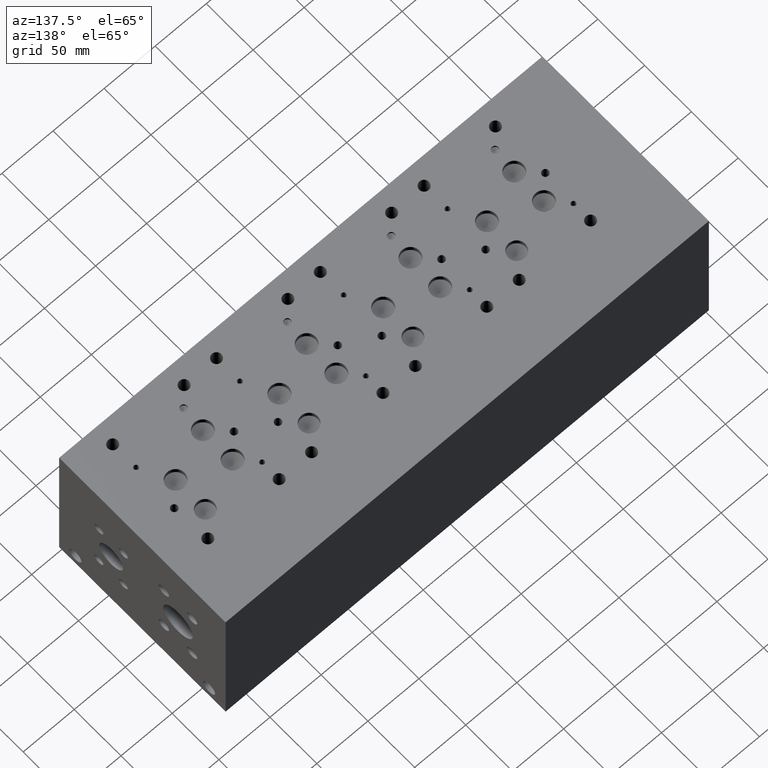
[diagram: clean part render]
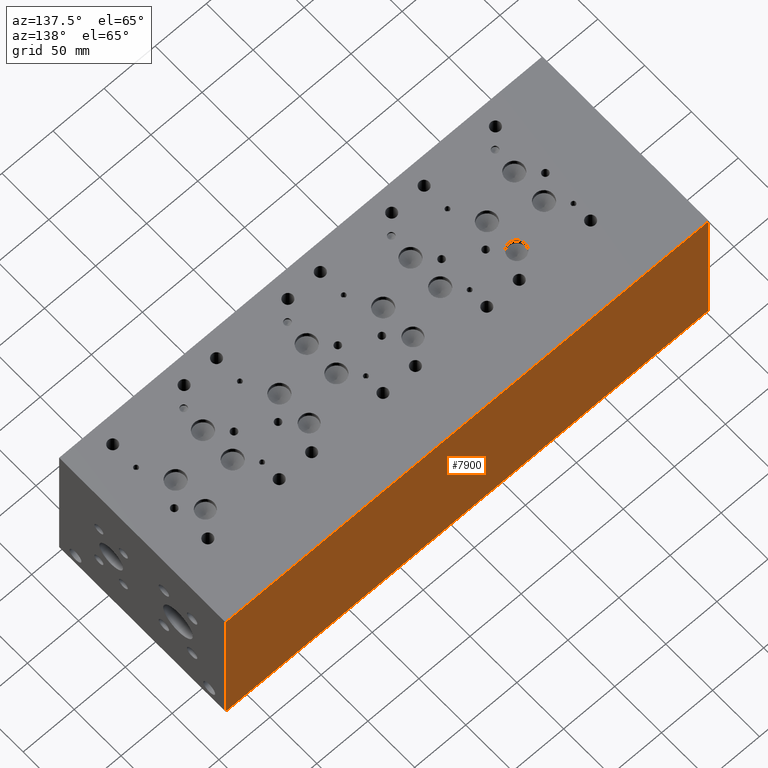
[diagram: same view with one face highlighted and labeled with its STEP entity id]
A machine part, auxiliary view. The second image highlights one B-rep face of the part: STEP entity #7900.
In plain terms, the highlighted planar face has unit normal (0, 1, 0).
Its self-contained STEP definition (entity closure, byte-faithful):
#7801=CARTESIAN_POINT('',(0.0,177.80000000000001,152.40000000000003));
#7802=VERTEX_POINT('',#7801);
#7809=CARTESIAN_POINT('',(0.0,177.80000000000001,0.0));
#7810=VERTEX_POINT('',#7809);
#7811=CARTESIAN_POINT('',(0.0,177.80000000000001,0.0));
#7812=DIRECTION('',(0.0,0.0,1.0));
#7813=VECTOR('',#7812,152.40000000000003);
#7814=LINE('',#7811,#7813);
#7815=EDGE_CURVE('',#7810,#7802,#7814,.T.);
#7870=CARTESIAN_POINT('',(0.0,177.80000000000001,0.0));
#7871=DIRECTION('',(0.0,1.0,0.0));
#7872=DIRECTION('',(0.0,0.0,1.0));
#7873=AXIS2_PLACEMENT_3D('',#7870,#7871,#7872);
#7874=PLANE('',#7873);
#7875=CARTESIAN_POINT('',(473.07500000000005,177.80000000000001,152.40000000000003));
#7876=VERTEX_POINT('',#7875);
#7877=CARTESIAN_POINT('',(0.0,177.80000000000001,152.40000000000003));
#7878=DIRECTION('',(1.0,0.0,0.0));
#7879=VECTOR('',#7878,473.07500000000005);
#7880=LINE('',#7877,#7879);
#7881=EDGE_CURVE('',#7802,#7876,#7880,.T.);
#7882=ORIENTED_EDGE('',*,*,#7881,.T.);
#7883=CARTESIAN_POINT('',(473.07500000000005,177.80000000000001,0.0));
#7884=VERTEX_POINT('',#7883);
#7885=CARTESIAN_POINT('',(473.07500000000005,177.80000000000001,0.0));
#7886=DIRECTION('',(0.0,0.0,1.0));
#7887=VECTOR('',#7886,152.40000000000003);
#7888=LINE('',#7885,#7887);
#7889=EDGE_CURVE('',#7884,#7876,#7888,.T.);
#7890=ORIENTED_EDGE('',*,*,#7889,.F.);
#7891=CARTESIAN_POINT('',(473.07500000000005,177.80000000000001,0.0));
#7892=DIRECTION('',(-1.0,0.0,0.0));
#7893=VECTOR('',#7892,473.07500000000005);
#7894=LINE('',#7891,#7893);
#7895=EDGE_CURVE('',#7884,#7810,#7894,.T.);
#7896=ORIENTED_EDGE('',*,*,#7895,.T.);
#7897=ORIENTED_EDGE('',*,*,#7815,.T.);
#7898=EDGE_LOOP('',(#7882,#7890,#7896,#7897));
#7899=FACE_OUTER_BOUND('',#7898,.T.);
#7900=ADVANCED_FACE('',(#7899),#7874,.T.);